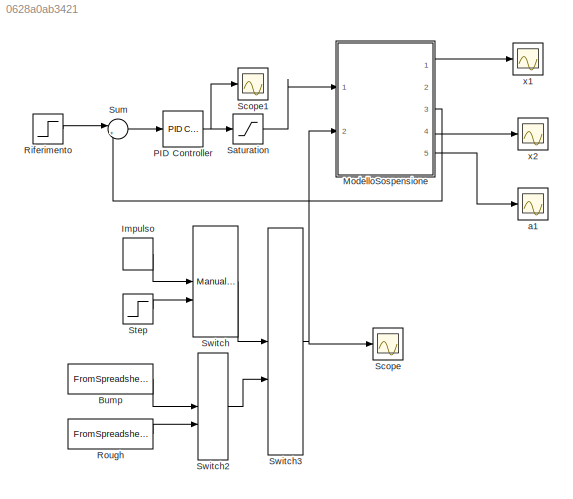
MODEL slx_0628a0ab3421
KIND model
CONFIG AbsTol = auto
CONFIG EnableMultiTasking = off
CONFIG FixedStep = 0.01
CONFIG MaxStep = auto
CONFIG MinStep = auto
CONFIG RelTol = 1e-3
CONFIG SampleTimeConstraint = Unconstrained
CONFIG Solver = FixedStepAuto
CONFIG SolverName = FixedStepAuto
CONFIG StartTime = 0.0
CONFIG StopTime = 10
BLOCK [FromSpreadsheet] Bump
  FileName = <userpath>\Desktop\UNITS\Meccanica delle vibrazioni\Bump.xlsx
  Ports = [0, 1]
  SheetName = Foglio1
BLOCK [DiscretePulseGenerator] Impulso
  Amplitude = 0.1
  Period = 10
  PhaseDelay = 1
  Ports = [0, 1]
  PulseType = Time based
  PulseWidth = 0.1
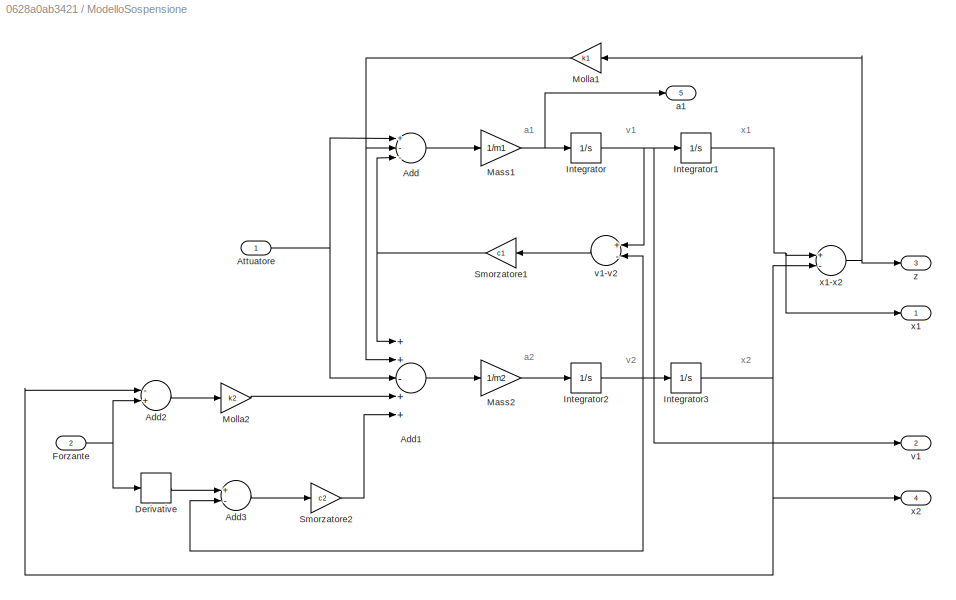
BLOCK [SubSystem] ModelloSospensione
  Ports = [2, 5]
  RequestExecContextInheritance = off
  Variant = off
BLOCK [Sum] ModelloSospensione/Add
  InputSameDT = off
  Inputs = +--
  OutDataTypeStr = Inherit: Inherit via internal rule
  Ports = [3, 1]
  SaturateOnIntegerOverflow = off
BLOCK [Sum] ModelloSospensione/Add1
  InputSameDT = off
  Inputs = ++-++
  OutDataTypeStr = Inherit: Inherit via internal rule
  Ports = [5, 1]
  SaturateOnIntegerOverflow = off
BLOCK [Sum] ModelloSospensione/Add2
  InputSameDT = off
  Inputs = -+
  OutDataTypeStr = Inherit: Inherit via internal rule
  Ports = [2, 1]
  SaturateOnIntegerOverflow = off
BLOCK [Sum] ModelloSospensione/Add3
  InputSameDT = off
  Inputs = +-
  OutDataTypeStr = Inherit: Inherit via internal rule
  Ports = [2, 1]
  SaturateOnIntegerOverflow = off
BLOCK [Inport] ModelloSospensione/Attuatore
  IconDisplay = Port number
BLOCK [Derivative] ModelloSospensione/Derivative
BLOCK [Inport] ModelloSospensione/Forzante
  IconDisplay = Port number
  Port = 2
BLOCK [Integrator] ModelloSospensione/Integrator
  Ports = [1, 1]
BLOCK [Integrator] ModelloSospensione/Integrator1
  Ports = [1, 1]
BLOCK [Integrator] ModelloSospensione/Integrator2
  Ports = [1, 1]
BLOCK [Integrator] ModelloSospensione/Integrator3
  Ports = [1, 1]
BLOCK [Gain] ModelloSospensione/Mass1
  Gain = 1/m1
  OutDataTypeStr = Inherit: Inherit via internal rule
  ParamDataTypeStr = Inherit: Inherit via internal rule
  SaturateOnIntegerOverflow = off
BLOCK [Gain] ModelloSospensione/Mass2
  Gain = 1/m2
  OutDataTypeStr = Inherit: Inherit via internal rule
  ParamDataTypeStr = Inherit: Inherit via internal rule
  SaturateOnIntegerOverflow = off
BLOCK [Gain] ModelloSospensione/Molla1
  Gain = k1
  OutDataTypeStr = Inherit: Inherit via internal rule
  ParamDataTypeStr = Inherit: Inherit via internal rule
  SaturateOnIntegerOverflow = off
BLOCK [Gain] ModelloSospensione/Molla2
  Gain = k2
  OutDataTypeStr = Inherit: Inherit via internal rule
  ParamDataTypeStr = Inherit: Inherit via internal rule
  SaturateOnIntegerOverflow = off
BLOCK [Gain] ModelloSospensione/Smorzatore1
  Gain = c1
  OutDataTypeStr = Inherit: Inherit via internal rule
  ParamDataTypeStr = Inherit: Inherit via internal rule
  SaturateOnIntegerOverflow = off
BLOCK [Gain] ModelloSospensione/Smorzatore2
  Gain = c2
  OutDataTypeStr = Inherit: Inherit via internal rule
  ParamDataTypeStr = Inherit: Inherit via internal rule
  SaturateOnIntegerOverflow = off
BLOCK [Outport] ModelloSospensione/a1
  IconDisplay = Port number
  Port = 5
BLOCK [Outport] ModelloSospensione/v1
  IconDisplay = Port number
  Port = 2
BLOCK [Sum] ModelloSospensione/v1-v2
  InputSameDT = off
  Inputs = +-
  OutDataTypeStr = Inherit: Inherit via internal rule
  Ports = [2, 1]
  SaturateOnIntegerOverflow = off
BLOCK [Outport] ModelloSospensione/x1
  IconDisplay = Port number
BLOCK [Sum] ModelloSospensione/x1-x2
  InputSameDT = off
  Inputs = +-
  OutDataTypeStr = Inherit: Inherit via internal rule
  Ports = [2, 1]
  SaturateOnIntegerOverflow = off
BLOCK [Outport] ModelloSospensione/x2
  IconDisplay = Port number
  Port = 4
BLOCK [Outport] ModelloSospensione/z
  IconDisplay = Port number
  Port = 3
BLOCK [Reference] PID Controller  REF=simulink/Continuous/PID Controller
  Ports = [1, 1]
  SourceBlock = simulink/Continuous/PID Controller
  SourceProductBaseCode = SL
  SourceProductName = Simulink
  SourceType = PID 1dof
BLOCK [Step] Riferimento
  After = 0
  SampleTime = 0
  Time = 0
BLOCK [FromSpreadsheet] Rough
  FileName = <userpath>\Desktop\UNITS\Meccanica delle vibrazioni\Rough.xlsx
  Ports = [0, 1]
  SheetName = Foglio1
BLOCK [Saturate] Saturation
  InputPortMap = u0
  LowerLimit = -1500
  Ports = [1, 1]
  UpperLimit = 1500
BLOCK [Scope] Scope
  NumInputPorts = 1
  Ports = [1]
  ScopeSpecificationString = Simulink.scopes.TimeScopeBlockCfg('CurrentConfiguration', extmgr.ConfigurationSet(extmgr.Configuration('Core','General UI',true),extmgr.Configuration('Core','Source UI',true),extmgr.Configuration('Sources','WiredSimulink',true,'DataLoggingVariableName','ScopeData1'),extmgr.Configuration('Visuals','Time Domain',true,'SerializedDisplays',{struct('MinYLimReal','-0.00000021','MaxYLimReal','0.00000039'...<+1442ch>
BLOCK [Scope] Scope1
  NumInputPorts = 1
  Ports = [1]
  ScopeSpecificationString = Simulink.scopes.TimeScopeBlockCfg('CurrentConfiguration', extmgr.ConfigurationSet(extmgr.Configuration('Core','General UI',true),extmgr.Configuration('Core','Source UI',true),extmgr.Configuration('Sources','WiredSimulink',true,'DataLoggingVariableName','ScopeData1'),extmgr.Configuration('Visuals','Time Domain',true,'SerializedDisplays',{struct('MinYLimReal','-1727.59831','MaxYLimReal','1809.07376'...<+1395ch>
BLOCK [Step] Step
  After = 0.1
  SampleTime = 0
  Time = 5
BLOCK [Sum] Sum
  IconShape = round
  InputSameDT = off
  Inputs = |+-
  OutDataTypeStr = Inherit: Inherit via internal rule
  Ports = [2, 1]
  SaturateOnIntegerOverflow = off
BLOCK [ManualSwitch] Switch
BLOCK [ManualSwitch] Switch2
  CurrentSetting = 0
BLOCK [ManualSwitch] Switch3
BLOCK [Scope] a1
  NumInputPorts = 1
  Ports = [1]
  ScopeSpecificationString = Simulink.scopes.TimeScopeBlockCfg('CurrentConfiguration', extmgr.ConfigurationSet(extmgr.Configuration('Core','General UI',true),extmgr.Configuration('Core','Source UI',true),extmgr.Configuration('Sources','WiredSimulink',true,'DataLoggingVariableName','a1','DataLogging',true,'DataLoggingSaveFormat','Array'),extmgr.Configuration('Visuals','Time Domain',true,'SerializedDisplays',{struct('MinYLimRea...<+1504ch>
BLOCK [Scope] x1
  NumInputPorts = 1
  Ports = [1]
  ScopeSpecificationString = Simulink.scopes.TimeScopeBlockCfg('CurrentConfiguration', extmgr.ConfigurationSet(extmgr.Configuration('Core','General UI',true),extmgr.Configuration('Core','Source UI',true),extmgr.Configuration('Sources','WiredSimulink',true,'DataLoggingVariableName','x1','DataLogging',true,'DataLoggingSaveFormat','Array'),extmgr.Configuration('Visuals','Time Domain',true,'SerializedDisplays',{struct('MinYLimRea...<+1503ch>
BLOCK [Scope] x2
  NumInputPorts = 1
  Ports = [1]
  ScopeSpecificationString = Simulink.scopes.TimeScopeBlockCfg('CurrentConfiguration', extmgr.ConfigurationSet(extmgr.Configuration('Core','General UI',true),extmgr.Configuration('Core','Source UI',true),extmgr.Configuration('Sources','WiredSimulink',true,'DataLogging',true,'DataLoggingVariableName','x2','DataLoggingSaveFormat','Array'),extmgr.Configuration('Visuals','Time Domain',true,'SerializedDisplays',{struct('MinYLimRea...<+1501ch>
ANNOTATION ModelloSospensione: a1
ANNOTATION ModelloSospensione: a2
ANNOTATION ModelloSospensione: v1
ANNOTATION ModelloSospensione: v2
ANNOTATION ModelloSospensione: x1
ANNOTATION ModelloSospensione: x2
LINE Bump:1 -> Switch2:1
LINE Impulso:1 -> Switch:1
LINE ModelloSospensione/Add1:1 -> ModelloSospensione/Mass2:1
LINE ModelloSospensione/Add2:1 -> ModelloSospensione/Molla2:1
LINE ModelloSospensione/Add3:1 -> ModelloSospensione/Smorzatore2:1
LINE ModelloSospensione/Add:1 -> ModelloSospensione/Mass1:1
NET ModelloSospensione/Attuatore:1 -> ModelloSospensione/Add1:3, ModelloSospensione/Add:1
LINE ModelloSospensione/Derivative:1 -> ModelloSospensione/Add3:1
NET ModelloSospensione/Forzante:1 -> ModelloSospensione/Add2:2, ModelloSospensione/Derivative:1
NET ModelloSospensione/Integrator1:1 -> ModelloSospensione/x1-x2:1, ModelloSospensione/x1:1
NET ModelloSospensione/Integrator2:1 -> ModelloSospensione/Add3:2, ModelloSospensione/Integrator3:1, ModelloSospensione/v1-v2:2
NET ModelloSospensione/Integrator3:1 -> ModelloSospensione/Add2:1, ModelloSospensione/x1-x2:2, ModelloSospensione/x2:1
NET ModelloSospensione/Integrator:1 -> ModelloSospensione/Integrator1:1, ModelloSospensione/v1-v2:1, ModelloSospensione/v1:1
NET ModelloSospensione/Mass1:1 -> ModelloSospensione/Integrator:1, ModelloSospensione/a1:1
LINE ModelloSospensione/Mass2:1 -> ModelloSospensione/Integrator2:1
NET ModelloSospensione/Molla1:1 -> ModelloSospensione/Add1:2, ModelloSospensione/Add:2
LINE ModelloSospensione/Molla2:1 -> ModelloSospensione/Add1:4
NET ModelloSospensione/Smorzatore1:1 -> ModelloSospensione/Add1:1, ModelloSospensione/Add:3
LINE ModelloSospensione/Smorzatore2:1 -> ModelloSospensione/Add1:5
LINE ModelloSospensione/v1-v2:1 -> ModelloSospensione/Smorzatore1:1
NET ModelloSospensione/x1-x2:1 -> ModelloSospensione/Molla1:1, ModelloSospensione/z:1
LINE ModelloSospensione:1 -> x1:1
LINE ModelloSospensione:3 -> Sum:2
LINE ModelloSospensione:4 -> x2:1
LINE ModelloSospensione:5 -> a1:1
NET PID Controller:1 -> Saturation:1, Scope1:1
LINE Riferimento:1 -> Sum:1
LINE Rough:1 -> Switch2:2
LINE Saturation:1 -> ModelloSospensione:1
LINE Step:1 -> Switch:2
LINE Sum:1 -> PID Controller:1
LINE Switch2:1 -> Switch3:2
NET Switch3:1 -> ModelloSospensione:2, Scope:1
LINE Switch:1 -> Switch3:1
note: NET lines group one-source signal fan-out (src -> all destinations, sorted); 1:1 wires keep LINE
